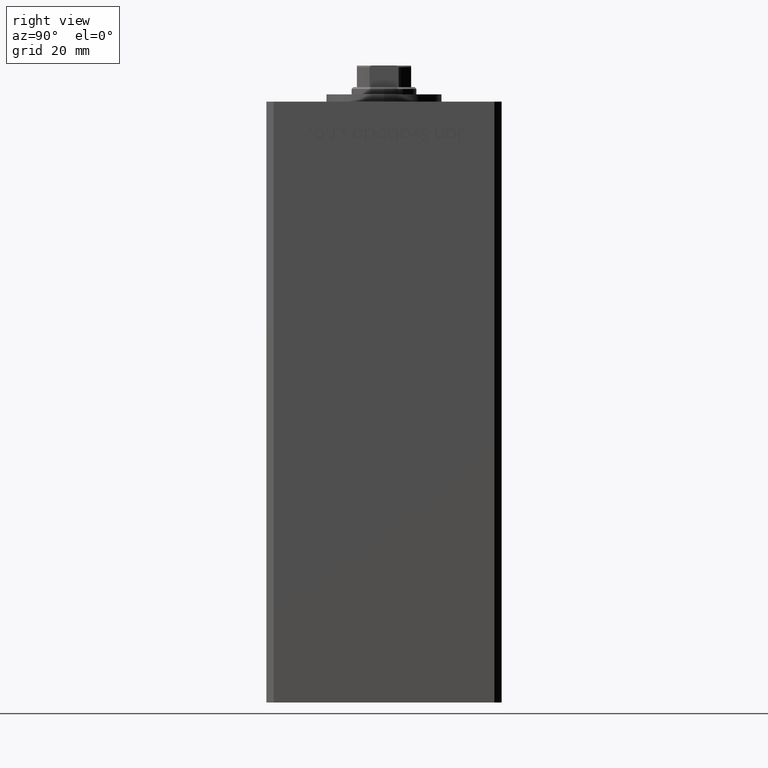
[diagram: clean part render]
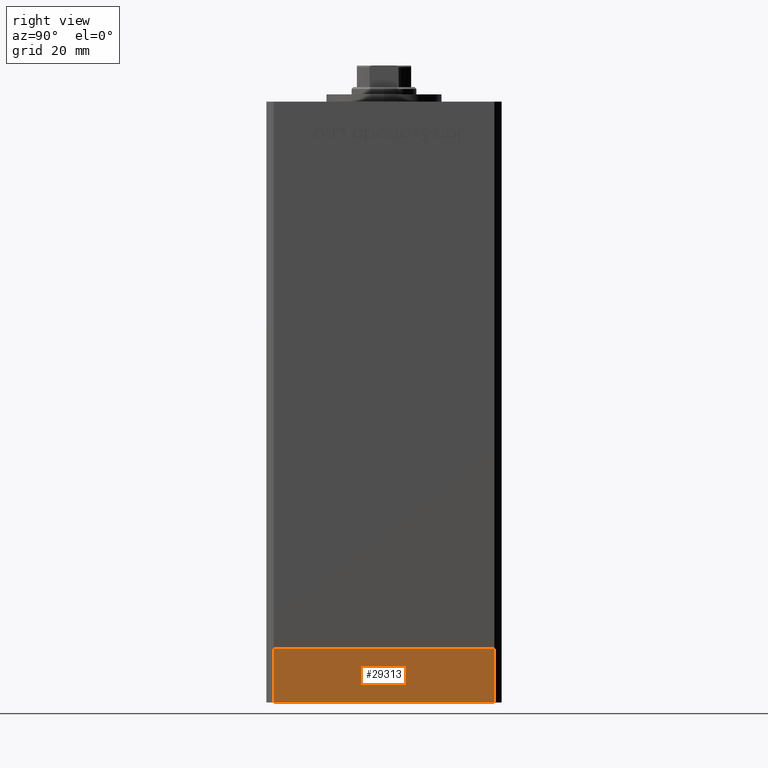
[diagram: same view with one face highlighted and labeled with its STEP entity id]
A machine part, right view. The second image highlights one B-rep face of the part: STEP entity #29313.
In plain terms, the highlighted planar face has unit normal (1, -0, 0).
Its self-contained STEP definition (entity closure, byte-faithful):
#2471 = EDGE_CURVE ( 'NONE', #47086, #46393, #45988, .T. ) ;
#3827 = VECTOR ( 'NONE', #48911, 1000.000000000000000 ) ;
#4734 = ORIENTED_EDGE ( 'NONE', *, *, #13502, .T. ) ;
#8524 = CARTESIAN_POINT ( 'NONE',  ( -37.50000000000001421, 30.49999999999998579, -15.00000000000000000 ) ) ;
#9549 = ORIENTED_EDGE ( 'NONE', *, *, #2471, .F. ) ;
#11156 = CARTESIAN_POINT ( 'NONE',  ( -37.49999999999998579, -30.50000000000001421, 0.000000000000000000 ) ) ;
#13310 = CARTESIAN_POINT ( 'NONE',  ( -37.50000000000001421, 30.49999999999998579, -15.00000000000000000 ) ) ;
#13502 = EDGE_CURVE ( 'NONE', #42009, #46393, #30002, .T. ) ;
#15661 = AXIS2_PLACEMENT_3D ( 'NONE', #8524, #48866, #33034 ) ;
#16066 = EDGE_CURVE ( 'NONE', #44159, #47086, #20180, .T. ) ;
#16545 = CARTESIAN_POINT ( 'NONE',  ( -37.50000000000001421, 30.49999999999998579, 0.000000000000000000 ) ) ;
#16858 = CARTESIAN_POINT ( 'NONE',  ( -37.50000000000001421, 30.49999999999998579, -15.00000000000000000 ) ) ;
#20180 = LINE ( 'NONE', #13310, #3827 ) ;
#20384 = FACE_OUTER_BOUND ( 'NONE', #44752, .T. ) ;
#20444 = DIRECTION ( 'NONE',  ( 4.550094363217855288E-16, -1.000000000000000000, 0.000000000000000000 ) ) ;
#23887 = LINE ( 'NONE', #27839, #35196 ) ;
#24739 = VECTOR ( 'NONE', #46087, 1000.000000000000000 ) ;
#27839 = CARTESIAN_POINT ( 'NONE',  ( -37.50000000000001421, 30.49999999999998579, -15.00000000000000000 ) ) ;
#28962 = CARTESIAN_POINT ( 'NONE',  ( -37.49999999999998579, -30.50000000000001421, -15.00000000000000000 ) ) ;
#29313 = ADVANCED_FACE ( 'NONE', ( #20384 ), #36471, .T. ) ;
#30002 = LINE ( 'NONE', #30791, #24739 ) ;
#30791 = CARTESIAN_POINT ( 'NONE',  ( -37.49999999999998579, -30.50000000000001421, -15.00000000000000000 ) ) ;
#33034 = DIRECTION ( 'NONE',  ( 4.550094363217855288E-16, -1.000000000000000000, 0.000000000000000000 ) ) ;
#35196 = VECTOR ( 'NONE', #20444, 1000.000000000000000 ) ;
#36471 = PLANE ( 'NONE',  #15661 ) ;
#36498 = ORIENTED_EDGE ( 'NONE', *, *, #37050, .T. ) ;
#37050 = EDGE_CURVE ( 'NONE', #44159, #42009, #23887, .T. ) ;
#37827 = CARTESIAN_POINT ( 'NONE',  ( -37.50000000000001421, 30.49999999999998579, 0.000000000000000000 ) ) ;
#41610 = ORIENTED_EDGE ( 'NONE', *, *, #16066, .F. ) ;
#42009 = VERTEX_POINT ( 'NONE', #28962 ) ;
#43993 = VECTOR ( 'NONE', #45725, 1000.000000000000000 ) ;
#44159 = VERTEX_POINT ( 'NONE', #16858 ) ;
#44752 = EDGE_LOOP ( 'NONE', ( #9549, #41610, #36498, #4734 ) ) ;
#45725 = DIRECTION ( 'NONE',  ( 4.550094363217855288E-16, -1.000000000000000000, 0.000000000000000000 ) ) ;
#45988 = LINE ( 'NONE', #37827, #43993 ) ;
#46087 = DIRECTION ( 'NONE',  ( 0.000000000000000000, 0.000000000000000000, 1.000000000000000000 ) ) ;
#46393 = VERTEX_POINT ( 'NONE', #11156 ) ;
#47086 = VERTEX_POINT ( 'NONE', #16545 ) ;
#48866 = DIRECTION ( 'NONE',  ( -1.000000000000000000, -4.550094363217855288E-16, 0.000000000000000000 ) ) ;
#48911 = DIRECTION ( 'NONE',  ( 0.000000000000000000, 0.000000000000000000, 1.000000000000000000 ) ) ;